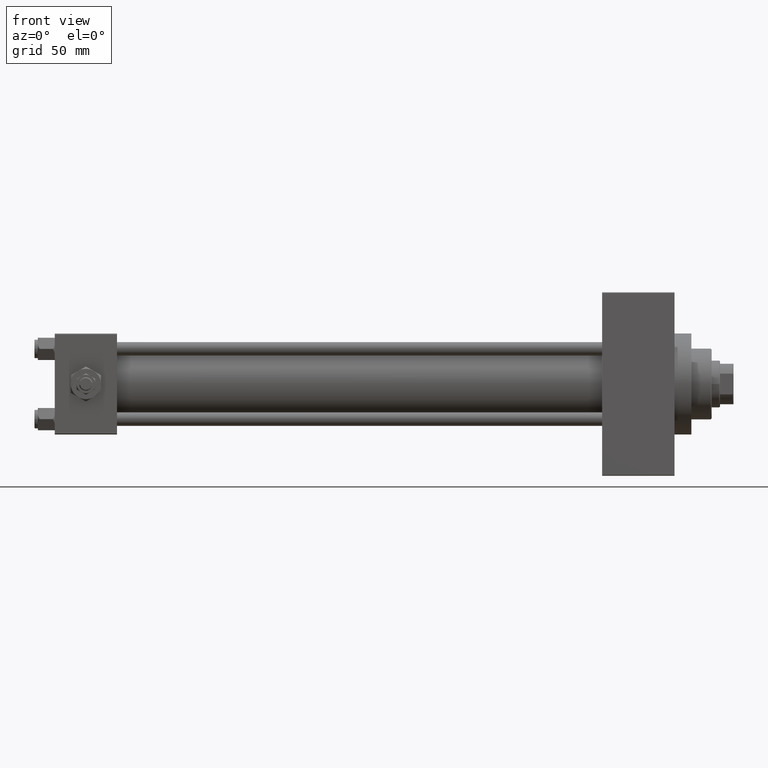
[diagram: clean part render]
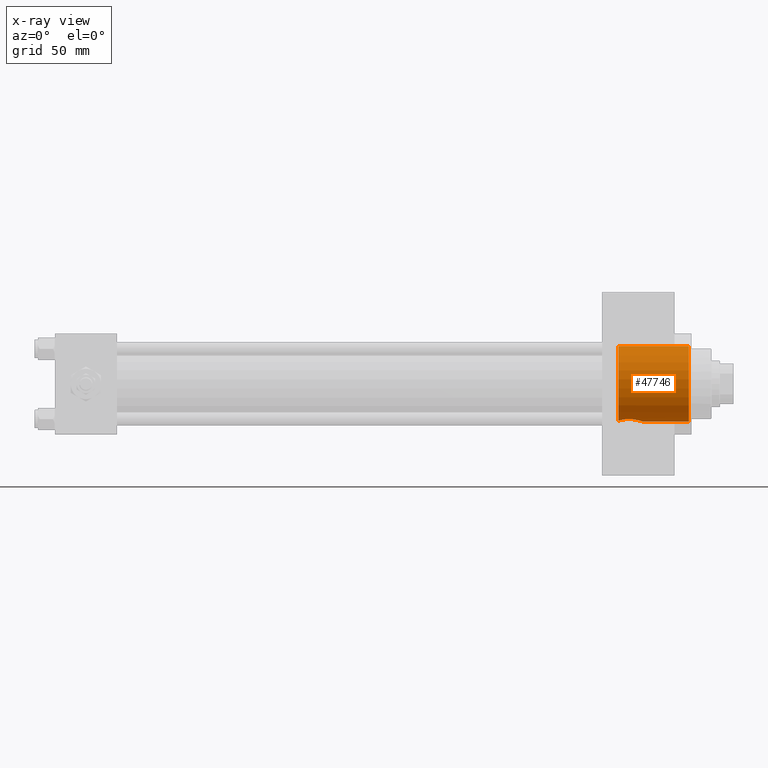
[diagram: x-ray — body ghosted, one internal face saturated and labeled with its STEP entity id]
A machine part, front view, then the same camera in x-ray: the body is ghosted and one INTERNAL B-rep face — a face not visible from any outside direction — is saturated and labeled: STEP entity #47746.
In plain terms, the highlighted cylindrical surface (partial cylindrical patch) has radius 22.5 mm, axis along (1, 0, 0).
Its self-contained STEP definition (entity closure, byte-faithful):
#56 = AXIS2_PLACEMENT_3D ( 'NONE', #48801, #14673, #29871 ) ;
#234 = CARTESIAN_POINT ( 'NONE',  ( 336.2981393575763036, -6.888851288155037444, -21.42070446004187900 ) ) ;
#583 = CARTESIAN_POINT ( 'NONE',  ( 334.7399999999999523, -5.495570943951124221, -21.81854028114622324 ) ) ;
#617 = CARTESIAN_POINT ( 'NONE',  ( 376.4999999999999432, 2.755455298081545172E-15, 22.50000000000000355 ) ) ;
#2874 = CIRCLE ( 'NONE', #26716, 22.50000000000000355 ) ;
#3055 = EDGE_CURVE ( 'NONE', #20305, #45642, #15158, .T. ) ;
#4902 = DIRECTION ( 'NONE',  ( 1.000000000000000000, -0.000000000000000000, -0.000000000000000000 ) ) ;
#4918 = ORIENTED_EDGE ( 'NONE', *, *, #39370, .T. ) ;
#4990 = CARTESIAN_POINT ( 'NONE',  ( 349.3299999999999841, -1.030804544852296126E-23, -22.50000000000000355 ) ) ;
#5386 = LINE ( 'NONE', #20317, #21773 ) ;
#5647 = CIRCLE ( 'NONE', #56, 22.50000000000000355 ) ;
#5918 = DIRECTION ( 'NONE',  ( 0.000000000000000000, 0.000000000000000000, -1.000000000000000000 ) ) ;
#5989 = CARTESIAN_POINT ( 'NONE',  ( 347.3413009043435977, -5.417501232309242631, -21.84028767977483909 ) ) ;
#6235 = CARTESIAN_POINT ( 'NONE',  ( 349.1699291769579645, -1.679278209817700374, -22.44115179447787511 ) ) ;
#7972 = DIRECTION ( 'NONE',  ( 0.000000000000000000, 0.000000000000000000, -1.000000000000000000 ) ) ;
#9711 = CARTESIAN_POINT ( 'NONE',  ( 339.7966742200955537, -8.253438808842137320, -20.93161653585324800 ) ) ;
#10205 = CARTESIAN_POINT ( 'NONE',  ( 346.4597915280917277, -6.305104980880392951, -21.60018777995133021 ) ) ;
#11707 = CARTESIAN_POINT ( 'NONE',  ( 334.7399999999999523, 2.755455298081545172E-15, 22.50000000000000355 ) ) ;
#11722 = VERTEX_POINT ( 'NONE', #617 ) ;
#11931 = ORIENTED_EDGE ( 'NONE', *, *, #19272, .F. ) ;
#13454 = CARTESIAN_POINT ( 'NONE',  ( 341.2794540716095639, -8.328024065339581838, -20.90201419577499564 ) ) ;
#13695 = CARTESIAN_POINT ( 'NONE',  ( 348.6639140372365659, -3.290714903397398139, -22.26132373405803477 ) ) ;
#14673 = DIRECTION ( 'NONE',  ( 1.000000000000000000, 0.000000000000000000, 0.000000000000000000 ) ) ;
#14684 = CARTESIAN_POINT ( 'NONE',  ( 335.9550632640746812, -6.641689111475748142, -21.49922460944222280 ) ) ;
#15158 = B_SPLINE_CURVE_WITH_KNOTS ( 'NONE', 3,
 ( #40364, #25893, #40108, #6235, #32631, #36622, #13695, #17683, #44345, #40611, #5989, #32388, #10205, #47592, #25400, #21660, #18180, #13454, #43855, #36865, #17934, #9711, #21170, #36370, #26870, #34095, #45814, #234, #14684, #45322, #27120, #18901 ),
 .UNSPECIFIED., .F., .F.,
 ( 4, 2, 2, 2, 2, 2, 2, 2, 2, 2, 2, 2, 2, 2, 2, 4 ),
 ( 0.02026158208243490286, 0.02152696880141145158, 0.02279235552038800378, 0.02405774223936455250, 0.02532312895834110122, 0.02658851567731764995, 0.02785390239629419867, 0.03038467583424730306, 0.03291544927220040051, 0.03354814263168863497, 0.03418083599117686944, 0.03544622271015333836, 0.03671160942912980729, 0.03797699614810627622, 0.03924238286708274515, 0.04050776958605921407 ),
 .UNSPECIFIED. ) ;
#17683 = CARTESIAN_POINT ( 'NONE',  ( 348.2951098973458102, -4.042988316980909325, -22.13706359110741673 ) ) ;
#17934 = CARTESIAN_POINT ( 'NONE',  ( 340.4273342078094515, -8.312974207010759287, -20.90801079915065586 ) ) ;
#18180 = CARTESIAN_POINT ( 'NONE',  ( 342.3403738839044763, -8.265299052519083034, -20.92696222447260013 ) ) ;
#18901 = CARTESIAN_POINT ( 'NONE',  ( 334.7399999999999523, -5.495570943951124221, -21.81854028114622324 ) ) ;
#19272 = EDGE_CURVE ( 'NONE', #30543, #45642, #5647, .T. ) ;
#19415 = DIRECTION ( 'NONE',  ( 1.000000000000000000, 0.000000000000000000, 0.000000000000000000 ) ) ;
#20160 = CARTESIAN_POINT ( 'NONE',  ( 376.4999999999999432, 0.000000000000000000, 0.000000000000000000 ) ) ;
#20305 = VERTEX_POINT ( 'NONE', #4990 ) ;
#20317 = CARTESIAN_POINT ( 'NONE',  ( 334.7399999999999523, 0.000000000000000000, -22.50000000000000355 ) ) ;
#20670 = VERTEX_POINT ( 'NONE', #29048 ) ;
#21095 = DIRECTION ( 'NONE',  ( 1.000000000000000000, -0.000000000000000000, -0.000000000000000000 ) ) ;
#21170 = CARTESIAN_POINT ( 'NONE',  ( 339.3814412075935820, -8.182171164303351674, -20.95982457214782002 ) ) ;
#21502 = LINE ( 'NONE', #40938, #23937 ) ;
#21590 = FACE_OUTER_BOUND ( 'NONE', #36107, .T. ) ;
#21660 = CARTESIAN_POINT ( 'NONE',  ( 343.1626272159215318, -8.088971939222155072, -20.99812971082577562 ) ) ;
#21773 = VECTOR ( 'NONE', #4902, 1000.000000000000000 ) ;
#23937 = VECTOR ( 'NONE', #43943, 1000.000000000000000 ) ;
#24303 = EDGE_CURVE ( 'NONE', #30543, #11722, #21502, .T. ) ;
#25400 = CARTESIAN_POINT ( 'NONE',  ( 344.7487363894114765, -7.487015359358492717, -21.22021487626639669 ) ) ;
#25893 = CARTESIAN_POINT ( 'NONE',  ( 349.3300000000000978, -0.4228661663087368572, -22.50000000000001421 ) ) ;
#26716 = AXIS2_PLACEMENT_3D ( 'NONE', #20160, #19415, #7972 ) ;
#26870 = CARTESIAN_POINT ( 'NONE',  ( 338.1560306839753025, -7.840697625789160519, -21.09036237300174577 ) ) ;
#26873 = ORIENTED_EDGE ( 'NONE', *, *, #3055, .T. ) ;
#27120 = CARTESIAN_POINT ( 'NONE',  ( 335.0173696454153855, -5.811522461638537251, -21.73895961452387482 ) ) ;
#28816 = CARTESIAN_POINT ( 'NONE',  ( 334.7399999999999523, 0.000000000000000000, 0.000000000000000000 ) ) ;
#29048 = CARTESIAN_POINT ( 'NONE',  ( 376.4999999999999432, 0.000000000000000000, -22.50000000000000355 ) ) ;
#29871 = DIRECTION ( 'NONE',  ( 0.000000000000000000, 0.000000000000000000, -1.000000000000000000 ) ) ;
#30087 = ORIENTED_EDGE ( 'NONE', *, *, #24303, .T. ) ;
#30543 = VERTEX_POINT ( 'NONE', #11707 ) ;
#32388 = CARTESIAN_POINT ( 'NONE',  ( 346.7709310324998455, -6.021442665975518693, -21.68155238348413505 ) ) ;
#32631 = CARTESIAN_POINT ( 'NONE',  ( 349.0725935047803432, -2.097577831626844080, -22.40566635581345167 ) ) ;
#32862 = AXIS2_PLACEMENT_3D ( 'NONE', #28816, #21095, #5918 ) ;
#34095 = CARTESIAN_POINT ( 'NONE',  ( 337.3830852825356033, -7.515492575748689674, -21.20842510955139559 ) ) ;
#36107 = EDGE_LOOP ( 'NONE', ( #11931, #30087, #4918, #38299, #26873 ) ) ;
#36297 = CYLINDRICAL_SURFACE ( 'NONE', #32862, 22.50000000000000355 ) ;
#36370 = CARTESIAN_POINT ( 'NONE',  ( 338.5613052431536403, -7.976241308370991767, -21.03905286955200538 ) ) ;
#36622 = CARTESIAN_POINT ( 'NONE',  ( 348.8195974207912400, -2.901808889280268922, -22.31576175661178496 ) ) ;
#36865 = CARTESIAN_POINT ( 'NONE',  ( 340.6388607599009219, -8.324890737869443669, -20.90325837862611635 ) ) ;
#38299 = ORIENTED_EDGE ( 'NONE', *, *, #48814, .F. ) ;
#39370 = EDGE_CURVE ( 'NONE', #11722, #20670, #2874, .T. ) ;
#40108 = CARTESIAN_POINT ( 'NONE',  ( 349.2979863424998257, -0.8432915997223064952, -22.48808859033163188 ) ) ;
#40364 = CARTESIAN_POINT ( 'NONE',  ( 349.3299999999999841, -1.030804544852296126E-23, -22.50000000000000355 ) ) ;
#40611 = CARTESIAN_POINT ( 'NONE',  ( 347.6031555897930616, -5.095277354536547065, -21.91828998158685593 ) ) ;
#40938 = CARTESIAN_POINT ( 'NONE',  ( 334.7399999999999523, 2.755455298081545172E-15, 22.50000000000000355 ) ) ;
#43855 = CARTESIAN_POINT ( 'NONE',  ( 341.0645977083230491, -8.332469890991696104, -20.90023832775081658 ) ) ;
#43943 = DIRECTION ( 'NONE',  ( 1.000000000000000000, -0.000000000000000000, -0.000000000000000000 ) ) ;
#44345 = CARTESIAN_POINT ( 'NONE',  ( 348.0799258618781096, -4.408873422199400594, -22.06660649451127654 ) ) ;
#45322 = CARTESIAN_POINT ( 'NONE',  ( 335.3158746668532899, -6.103616970294087452, -21.65812902678067431 ) ) ;
#45642 = VERTEX_POINT ( 'NONE', #583 ) ;
#45814 = CARTESIAN_POINT ( 'NONE',  ( 337.0116854358693672, -7.325101535721532997, -21.27547271216654678 ) ) ;
#47592 = CARTESIAN_POINT ( 'NONE',  ( 345.4717217021022861, -7.077548616542929771, -21.36464718587222222 ) ) ;
#47746 = ADVANCED_FACE ( 'NONE', ( #21590 ), #36297, .F. ) ;
#48801 = CARTESIAN_POINT ( 'NONE',  ( 334.7399999999999523, 0.000000000000000000, 0.000000000000000000 ) ) ;
#48814 = EDGE_CURVE ( 'NONE', #20305, #20670, #5386, .T. ) ;